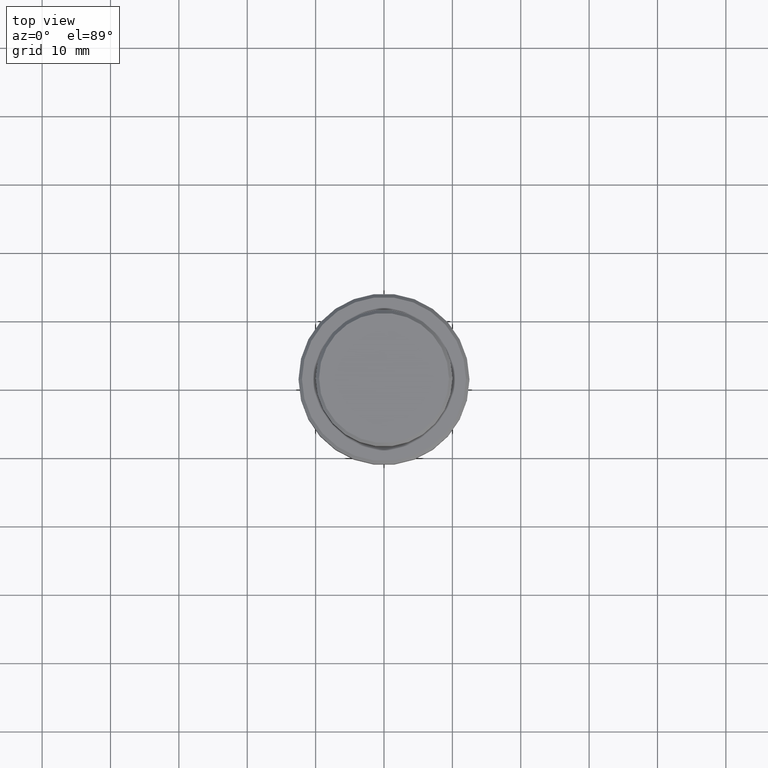
[diagram: clean part render]
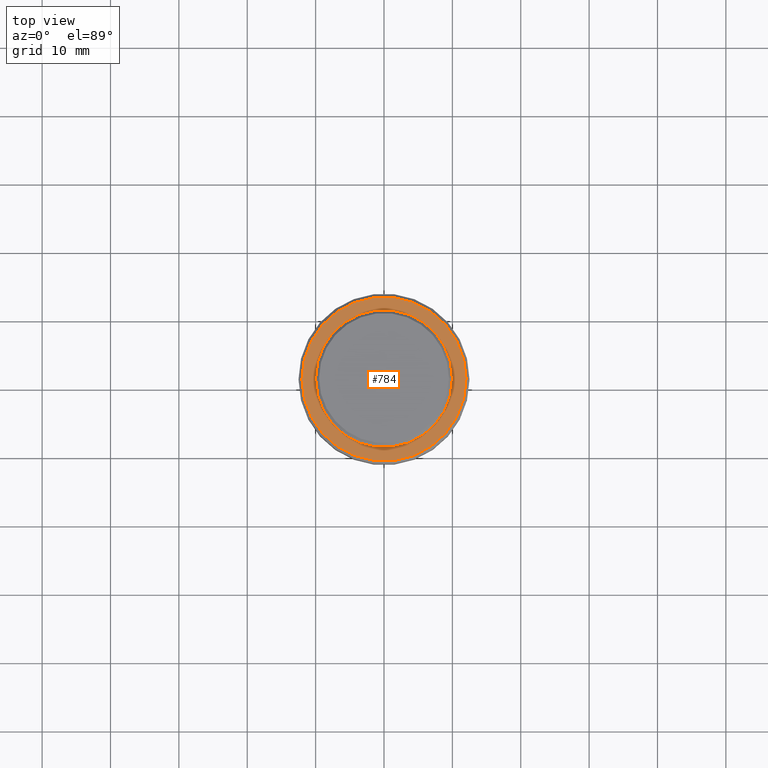
[diagram: same view with one face highlighted and labeled with its STEP entity id]
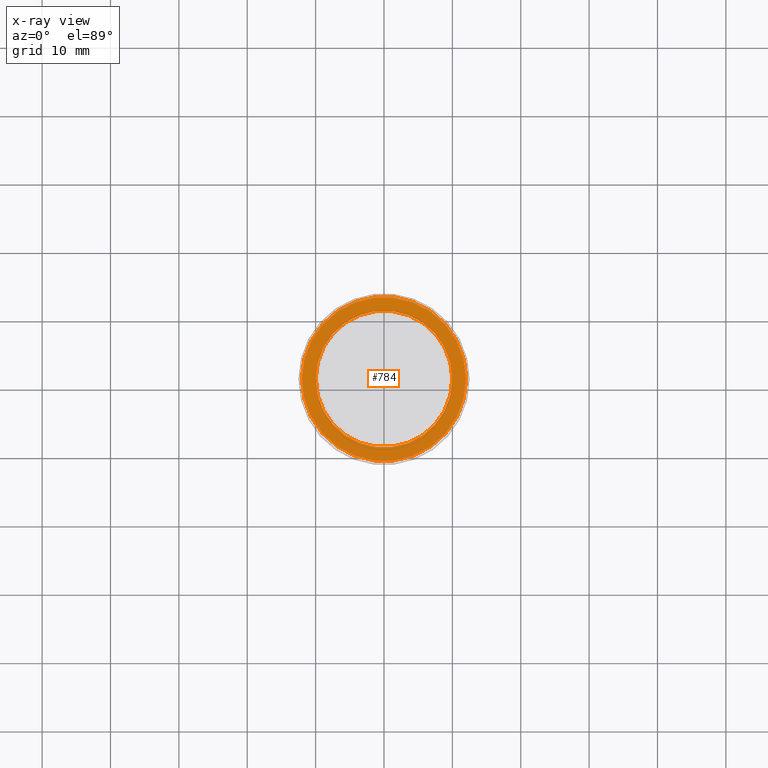
[diagram: x-ray of the same camera — body ghosted, the highlighted face saturated]
A machine part, top view. The second image highlights one B-rep face of the part: STEP entity #784.
The next image is the same camera in x-ray: the body ghosted, the highlighted face saturated — about 0% of this face is hidden behind the body in this view.
In plain terms, the highlighted planar face has unit normal (0, -0, 1).
Its self-contained STEP definition (entity closure, byte-faithful):
#16 = EDGE_LOOP ( 'NONE', ( #643, #373 ) ) ;
#24 = CIRCLE ( 'NONE', #95, 11.99999999999999645 ) ;
#37 = EDGE_CURVE ( 'NONE', #249, #586, #1210, .T. ) ;
#92 = AXIS2_PLACEMENT_3D ( 'NONE', #914, #999, #121 ) ;
#95 = AXIS2_PLACEMENT_3D ( 'NONE', #387, #1233, #593 ) ;
#102 = CARTESIAN_POINT ( 'NONE',  ( -9.999999999999992895, 1.224646799147352468E-15, -9.000000000000000000 ) ) ;
#111 = AXIS2_PLACEMENT_3D ( 'NONE', #301, #201, #1090 ) ;
#121 = DIRECTION ( 'NONE',  ( 1.000000000000000000, 0.000000000000000000, 0.000000000000000000 ) ) ;
#122 = CARTESIAN_POINT ( 'NONE',  ( 11.99999999999999645, 1.500192328955507537E-15, -9.000000000000000000 ) ) ;
#143 = ORIENTED_EDGE ( 'NONE', *, *, #581, .T. ) ;
#164 = DIRECTION ( 'NONE',  ( 1.000000000000000000, 0.000000000000000000, 0.000000000000000000 ) ) ;
#175 = DIRECTION ( 'NONE',  ( 0.000000000000000000, -0.000000000000000000, 1.000000000000000000 ) ) ;
#201 = DIRECTION ( 'NONE',  ( -0.000000000000000000, -0.000000000000000000, 1.000000000000000000 ) ) ;
#210 = VERTEX_POINT ( 'NONE', #1203 ) ;
#224 = AXIS2_PLACEMENT_3D ( 'NONE', #585, #703, #164 ) ;
#249 = VERTEX_POINT ( 'NONE', #1358 ) ;
#269 = AXIS2_PLACEMENT_3D ( 'NONE', #721, #175, #1066 ) ;
#281 = FACE_BOUND ( 'NONE', #16, .T. ) ;
#301 = CARTESIAN_POINT ( 'NONE',  ( 0.000000000000000000, 0.000000000000000000, -9.000000000000000000 ) ) ;
#373 = ORIENTED_EDGE ( 'NONE', *, *, #759, .T. ) ;
#387 = CARTESIAN_POINT ( 'NONE',  ( 0.000000000000000000, 0.000000000000000000, -9.000000000000000000 ) ) ;
#581 = EDGE_CURVE ( 'NONE', #210, #1388, #1165, .T. ) ;
#585 = CARTESIAN_POINT ( 'NONE',  ( 0.000000000000000000, 0.000000000000000000, -9.000000000000000000 ) ) ;
#586 = VERTEX_POINT ( 'NONE', #102 ) ;
#593 = DIRECTION ( 'NONE',  ( 1.000000000000000000, 0.000000000000000000, 0.000000000000000000 ) ) ;
#621 = PLANE ( 'NONE',  #269 ) ;
#643 = ORIENTED_EDGE ( 'NONE', *, *, #37, .T. ) ;
#657 = ORIENTED_EDGE ( 'NONE', *, *, #679, .T. ) ;
#679 = EDGE_CURVE ( 'NONE', #1388, #210, #24, .T. ) ;
#703 = DIRECTION ( 'NONE',  ( 0.000000000000000000, 0.000000000000000000, -1.000000000000000000 ) ) ;
#721 = CARTESIAN_POINT ( 'NONE',  ( 0.000000000000000000, 9.499999999999992895, -9.000000000000000000 ) ) ;
#759 = EDGE_CURVE ( 'NONE', #586, #249, #1213, .T. ) ;
#784 = ADVANCED_FACE ( 'NONE', ( #1262, #281 ), #621, .T. ) ;
#914 = CARTESIAN_POINT ( 'NONE',  ( 0.000000000000000000, 0.000000000000000000, -9.000000000000000000 ) ) ;
#987 = EDGE_LOOP ( 'NONE', ( #143, #657 ) ) ;
#999 = DIRECTION ( 'NONE',  ( 0.000000000000000000, 0.000000000000000000, -1.000000000000000000 ) ) ;
#1066 = DIRECTION ( 'NONE',  ( 1.000000000000000000, 0.000000000000000000, 0.000000000000000000 ) ) ;
#1090 = DIRECTION ( 'NONE',  ( 1.000000000000000000, 0.000000000000000000, 0.000000000000000000 ) ) ;
#1165 = CIRCLE ( 'NONE', #111, 11.99999999999999645 ) ;
#1203 = CARTESIAN_POINT ( 'NONE',  ( -11.99999999999999645, 0.000000000000000000, -9.000000000000000000 ) ) ;
#1210 = CIRCLE ( 'NONE', #92, 9.999999999999992895 ) ;
#1213 = CIRCLE ( 'NONE', #224, 9.999999999999992895 ) ;
#1233 = DIRECTION ( 'NONE',  ( -0.000000000000000000, -0.000000000000000000, 1.000000000000000000 ) ) ;
#1262 = FACE_OUTER_BOUND ( 'NONE', #987, .T. ) ;
#1358 = CARTESIAN_POINT ( 'NONE',  ( 9.999999999999992895, 0.000000000000000000, -9.000000000000000000 ) ) ;
#1388 = VERTEX_POINT ( 'NONE', #122 ) ;